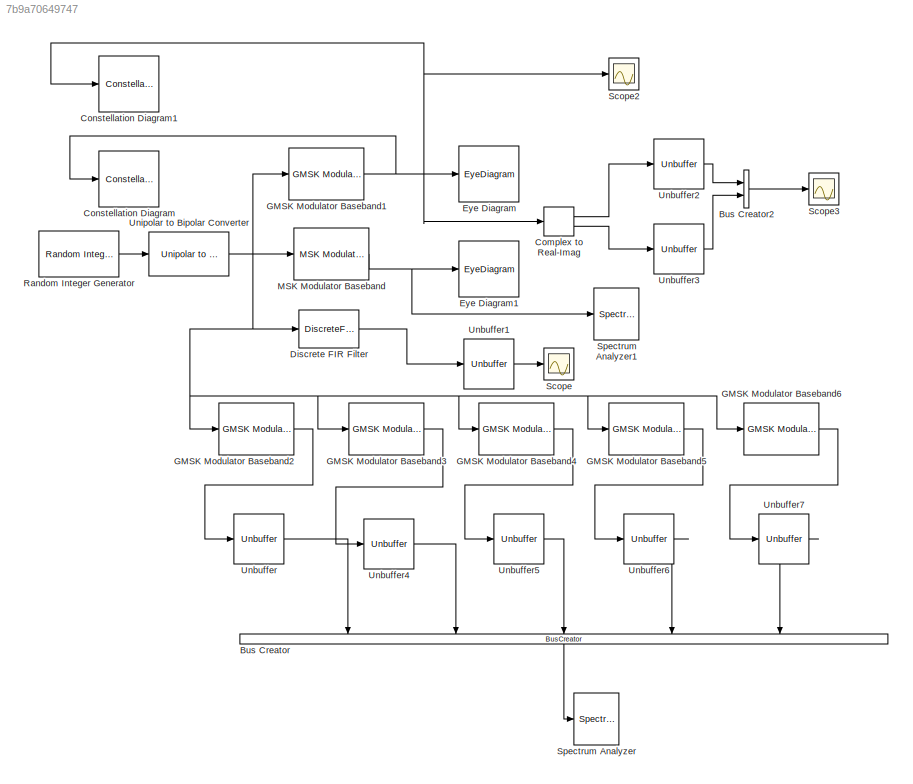
MODEL mdl_7b9a70649747
KIND model
CONFIG AbsTol = auto
CONFIG EnableMultiTasking = off
CONFIG FixedStep = auto
CONFIG MaxStep = auto
CONFIG MinStep = auto
CONFIG RelTol = 1e-3
CONFIG SampleTimeConstraint = Unconstrained
CONFIG SolverName = VariableStepAuto
CONFIG StartTime = 0.0
CONFIG StopTime = 10.0
BLOCK [BusCreator] Bus Creator
  DisplayOption = bar
  InheritFromInputs = on
  Inputs = 5
  NameLocation = left
  Ports = [5, 1]
BLOCK [BusCreator] Bus Creator2
  DisplayOption = bar
  InheritFromInputs = on
  Inputs = 2
  Ports = [2, 1]
BLOCK [ComplexToRealImag] Complex to Real-Imag
  Ports = [1, 2]
BLOCK [ConstellationDiagram] Constellation Diagram
  GraphicalSettings = {"GraphicalSettings":{"Style":{}}}
  Ports = [1]
  ScopeFrameLocation = window
  WasSavedAsWebScope = on
  WindowPosition = [382.000000,84.000000,600.000000,600.000000,]
BLOCK [ConstellationDiagram] Constellation Diagram1
  GraphicalSettings = {"GraphicalSettings":{"Style":{}}}
  Ports = [1]
  ScopeFrameLocation = window
  WasSavedAsWebScope = on
  WindowPosition = [382.000000,84.000000,600.000000,600.000000,]
BLOCK [DiscreteFir] Discrete FIR Filter
  InputPortMap = u0
  OutputPortMap = o0
  Ports = [1, 1]
BLOCK [EyeDiagram] Eye Diagram
  Ports = [1]
  ScopeSpecificationString = comm.scopes.EyeDiagramBlockCfg('CurrentConfiguration', extmgr.ConfigurationSet(extmgr.Configuration('Core','General UI',true),extmgr.Configuration('Core','Source UI',true),extmgr.Configuration('Sources','WiredSimulink',true),extmgr.Configuration('Sources','Simulink',false),extmgr.Configuration('Sources','File',false),extmgr.Configuration('Sources','Workspace',false),extmgr.Configuration('Sources',...<+1055ch>
BLOCK [EyeDiagram] Eye Diagram1
  Ports = [1]
  ScopeSpecificationString = comm.scopes.EyeDiagramBlockCfg('CurrentConfiguration', extmgr.ConfigurationSet(extmgr.Configuration('Core','General UI',true),extmgr.Configuration('Core','Source UI',true),extmgr.Configuration('Sources','WiredSimulink',true),extmgr.Configuration('Sources','Simulink',false),extmgr.Configuration('Sources','File',false),extmgr.Configuration('Sources','Workspace',false),extmgr.Configuration('Sources',...<+906ch>
BLOCK [Reference] GMSK Modulator Baseband1  REF=commdigbbndcpm2/GMSK
Modulator
Baseband
  Ports = [1, 1]
  SourceBlock = commdigbbndcpm2/GMSK\nModulator\nBaseband
  SourceProductBaseCode = CM
  SourceType = GMSK Modulator Baseband
  UserDataPersistent = on
BLOCK [Reference] GMSK Modulator Baseband2  REF=commdigbbndcpm2/GMSK
Modulator
Baseband
  Ports = [1, 1]
  SourceBlock = commdigbbndcpm2/GMSK\nModulator\nBaseband
  SourceProductBaseCode = CM
  SourceType = GMSK Modulator Baseband
  UserDataPersistent = on
BLOCK [Reference] GMSK Modulator Baseband3  REF=commdigbbndcpm2/GMSK
Modulator
Baseband
  Ports = [1, 1]
  SourceBlock = commdigbbndcpm2/GMSK\nModulator\nBaseband
  SourceProductBaseCode = CM
  SourceType = GMSK Modulator Baseband
  UserDataPersistent = on
BLOCK [Reference] GMSK Modulator Baseband4  REF=commdigbbndcpm2/GMSK
Modulator
Baseband
  Ports = [1, 1]
  SourceBlock = commdigbbndcpm2/GMSK\nModulator\nBaseband
  SourceProductBaseCode = CM
  SourceType = GMSK Modulator Baseband
  UserDataPersistent = on
BLOCK [Reference] GMSK Modulator Baseband5  REF=commdigbbndcpm2/GMSK
Modulator
Baseband
  Ports = [1, 1]
  SourceBlock = commdigbbndcpm2/GMSK\nModulator\nBaseband
  SourceProductBaseCode = CM
  SourceType = GMSK Modulator Baseband
  UserDataPersistent = on
BLOCK [Reference] GMSK Modulator Baseband6  REF=commdigbbndcpm2/GMSK
Modulator
Baseband
  Ports = [1, 1]
  SourceBlock = commdigbbndcpm2/GMSK\nModulator\nBaseband
  SourceProductBaseCode = CM
  SourceType = GMSK Modulator Baseband
  UserDataPersistent = on
BLOCK [Reference] MSK Modulator Baseband  REF=commdigbbndcpm2/MSK
Modulator
Baseband
  Ports = [1, 1]
  SourceBlock = commdigbbndcpm2/MSK\nModulator\nBaseband
  SourceProductBaseCode = CM
  SourceType = MSK Modulator Baseband
  UserDataPersistent = on
BLOCK [Reference] Random Integer Generator  REF=commrandsrc3/Random Integer
Generator
  Ports = [0, 1]
  SourceBlock = commrandsrc3/Random Integer\nGenerator
  SourceProductBaseCode = CM
  SourceType = Random Integer Generator
BLOCK [Scope] Scope
  Floating = off
  NumInputPorts = 1
  Ports = [1]
  ScopeSpecificationString = Simulink.scopes.TimeScopeBlockCfg('CurrentConfiguration', extmgr.ConfigurationSet(extmgr.Configuration('Core','General UI',true),extmgr.Configuration('Core','Source UI',true),extmgr.Configuration('Sources','WiredSimulink',true),extmgr.Configuration('Visuals','Time Domain',true,'SerializedDisplays',{struct('MinYLimReal','-10','MaxYLimReal','10','YLabelReal','','MinYLimMag','0','MaxYLimMag','10','Le...<+763ch>
BLOCK [Scope] Scope2
  Floating = off
  NumInputPorts = 1
  Ports = [1]
  ScopeSpecificationString = Simulink.scopes.TimeScopeBlockCfg('CurrentConfiguration', extmgr.ConfigurationSet(extmgr.Configuration('Core','General UI',true),extmgr.Configuration('Core','Source UI',true),extmgr.Configuration('Sources','WiredSimulink',true,'DataLoggingVariableName','ScopeData2'),extmgr.Configuration('Visuals','Time Domain',true),extmgr.Configuration('Tools','Plot Navigation',true),extmgr.Configuration('Tools',...<+40ch>
BLOCK [Scope] Scope3
  Floating = off
  NumInputPorts = 1
  Ports = [1]
  ScopeSpecificationString = Simulink.scopes.TimeScopeBlockCfg('CurrentConfiguration', extmgr.ConfigurationSet(extmgr.Configuration('Core','General UI',true),extmgr.Configuration('Core','Source UI',true),extmgr.Configuration('Sources','WiredSimulink',true,'DataLoggingVariableName','ScopeData3'),extmgr.Configuration('Visuals','Time Domain',true),extmgr.Configuration('Tools','Plot Navigation',true),extmgr.Configuration('Tools',...<+40ch>
BLOCK [SpectrumAnalyzer] Spectrum Analyzer
  Ports = [1]
  ScopeSpecificationString = spbscopes.SpectrumAnalyzerBlockCfg('CurrentConfiguration', extmgr.ConfigurationSet(extmgr.Configuration('Core','General UI',true),extmgr.Configuration('Core','Source UI',true),extmgr.Configuration('Sources','WiredSimulink',true),extmgr.Configuration('Visuals','Spectrum',true,'AxesProperties',struct('Color',{[0 0 0],[0 0 0]},'XColor',{[0.686274509803922 0.686274509803922 0.686274509803922],[0.68627...<+1995ch>
BLOCK [SpectrumAnalyzer] Spectrum Analyzer1
  IsFrequencyInputMode = 1
  Ports = [1]
  ScopeSpecificationString = spbscopes.SpectrumAnalyzerBlockCfg('CurrentConfiguration', extmgr.ConfigurationSet(extmgr.Configuration('Core','General UI',true),extmgr.Configuration('Core','Source UI',true),extmgr.Configuration('Sources','WiredSimulink',true),extmgr.Configuration('Visuals','Spectrum',true,'AxesProperties',struct('Color',{[0 0 0],[0 0 0]},'XColor',{[0.686274509803922 0.686274509803922 0.686274509803922],[0.68627...<+1930ch>
BLOCK [Unbuffer] Unbuffer
  Ports = [1, 1]
BLOCK [Unbuffer] Unbuffer1
  Ports = [1, 1]
BLOCK [Unbuffer] Unbuffer2
  Ports = [1, 1]
BLOCK [Unbuffer] Unbuffer3
  Ports = [1, 1]
BLOCK [Unbuffer] Unbuffer4
  Ports = [1, 1]
BLOCK [Unbuffer] Unbuffer5
  Ports = [1, 1]
BLOCK [Unbuffer] Unbuffer6
  Ports = [1, 1]
BLOCK [Unbuffer] Unbuffer7
  Ports = [1, 1]
BLOCK [Reference] Unipolar to Bipolar Converter  REF=commutil2/Unipolar to
Bipolar
Converter
  Ports = [1, 1]
  SourceBlock = commutil2/Unipolar to\nBipolar\nConverter
  SourceProductBaseCode = CM
  SourceType = Unipolar to Bipolar Converter
LINE Bus Creator2:1 -> Scope3:1
LINE Bus Creator:1 -> Spectrum Analyzer:1
LINE Complex to Real-Imag:1 -> Unbuffer2:1
LINE Complex to Real-Imag:2 -> Unbuffer3:1
LINE Discrete FIR Filter:1 -> Unbuffer1:1
NET GMSK Modulator Baseband1:1 -> Complex to Real-Imag:1, Constellation Diagram1:1, Constellation Diagram:1, Eye Diagram:1, Scope2:1
LINE GMSK Modulator Baseband2:1 -> Unbuffer:1
LINE GMSK Modulator Baseband3:1 -> Unbuffer4:1
LINE GMSK Modulator Baseband4:1 -> Unbuffer5:1
LINE GMSK Modulator Baseband5:1 -> Unbuffer6:1
LINE GMSK Modulator Baseband6:1 -> Unbuffer7:1
NET MSK Modulator Baseband:1 -> Eye Diagram1:1, Spectrum Analyzer1:1
LINE Random Integer Generator:1 -> Unipolar to Bipolar Converter:1
LINE Unbuffer1:1 -> Scope:1
LINE Unbuffer2:1 -> Bus Creator2:1
LINE Unbuffer3:1 -> Bus Creator2:2
LINE Unbuffer4:1 -> Bus Creator:2
LINE Unbuffer5:1 -> Bus Creator:3
LINE Unbuffer6:1 -> Bus Creator:4
LINE Unbuffer7:1 -> Bus Creator:5
LINE Unbuffer:1 -> Bus Creator:1
NET Unipolar to Bipolar Converter:1 -> Discrete FIR Filter:1, GMSK Modulator Baseband1:1, GMSK Modulator Baseband2:1, GMSK Modulator Baseband3:1, GMSK Modulator Baseband4:1, GMSK Modulator Baseband5:1, GMSK Modulator Baseband6:1, MSK Modulator Baseband:1
note: NET lines group one-source signal fan-out (src -> all destinations, sorted); 1:1 wires keep LINE
